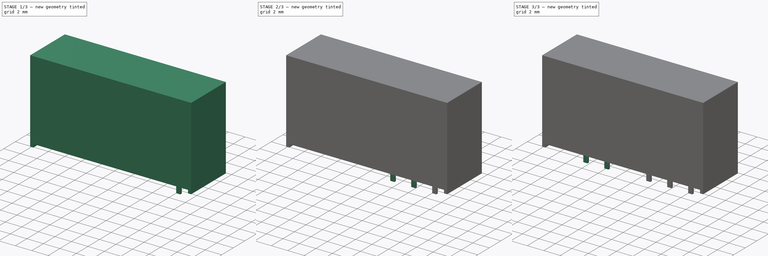
[diagram: build sequence overview — one tinted view per stage of 3, left to right]
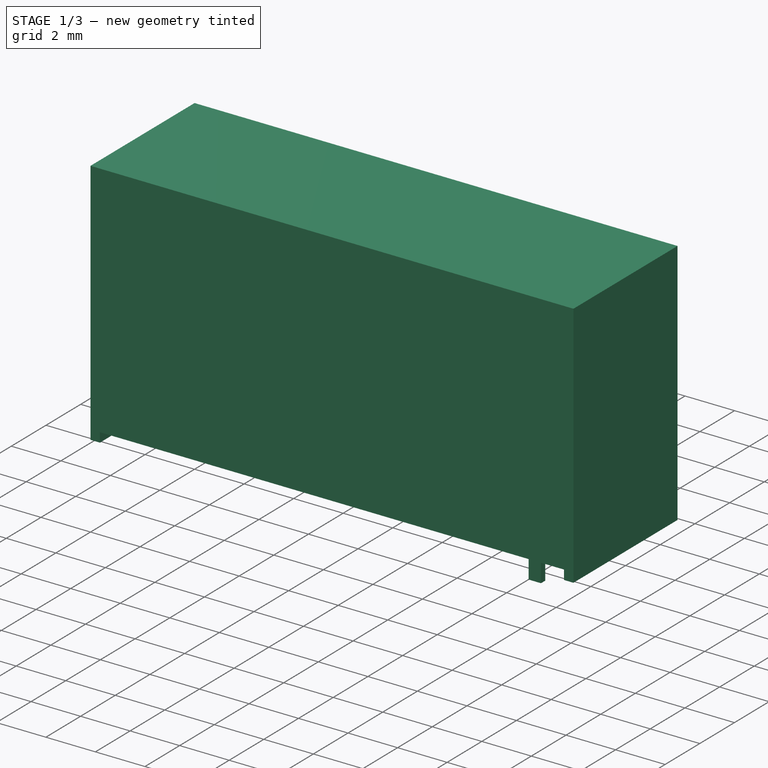
[diagram: stage 1 of 3 — iso view after this stage's code; geometry added in this stage tinted green]
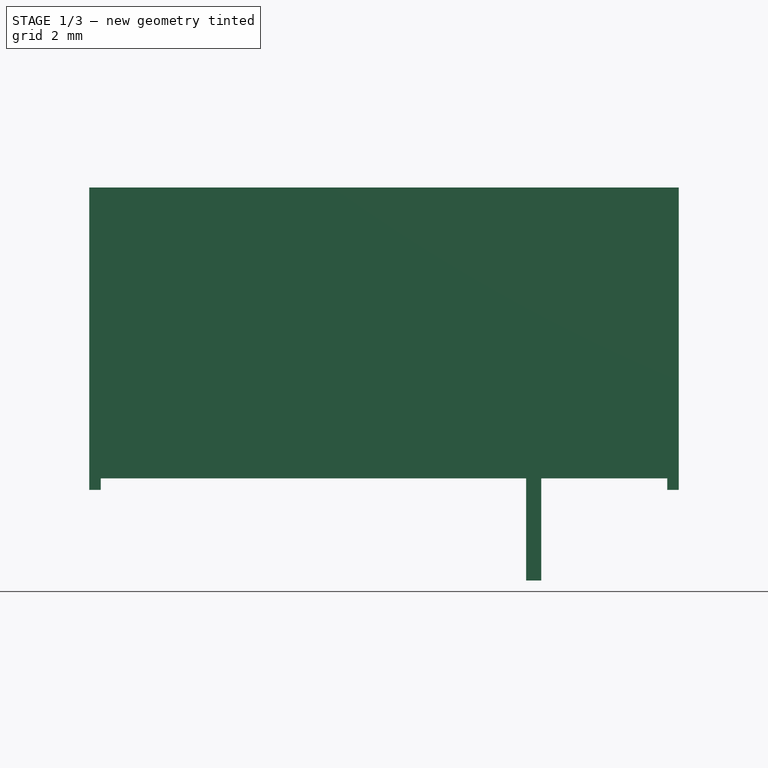
[diagram: stage 1 of 3 — front view after this stage's code; geometry added in this stage tinted green]
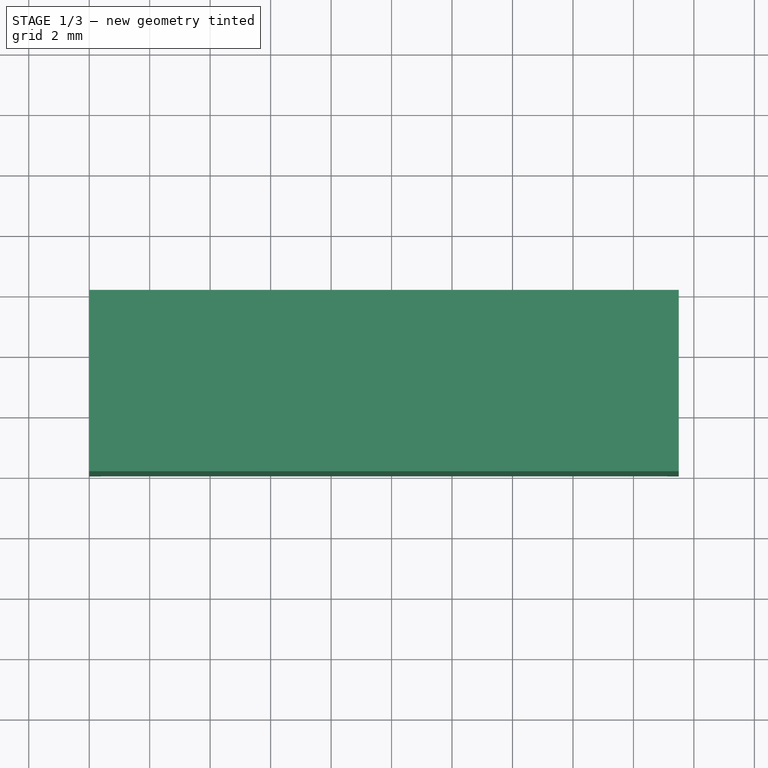
[diagram: stage 1 of 3 — top view after this stage's code; geometry added in this stage tinted green]
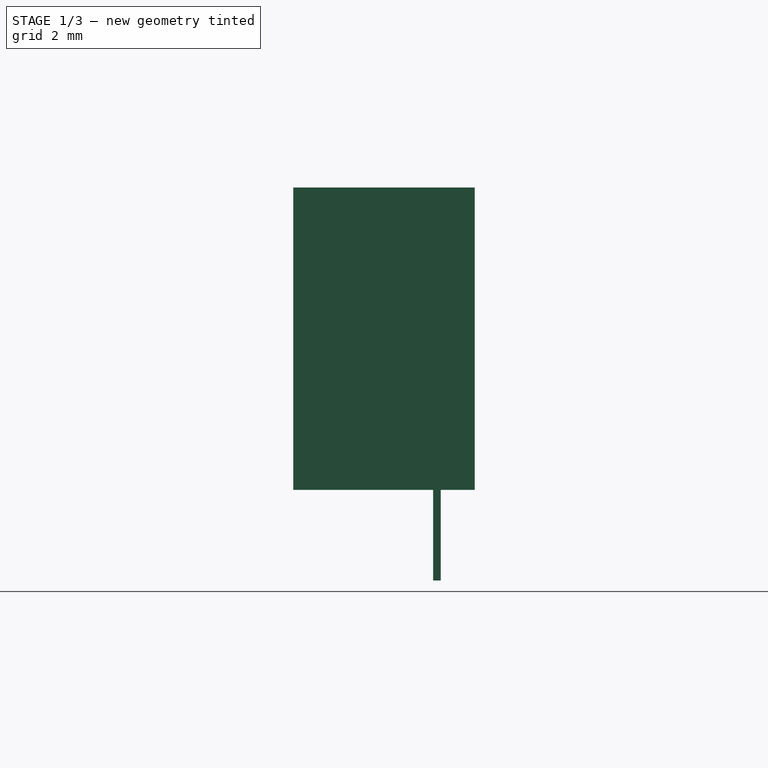
[diagram: stage 1 of 3 — right view after this stage's code; geometry added in this stage tinted green]
FCSTD DOCUMENT  (FreeCAD 0.16R6433 (Git))
Label: NMA2415SC
License: All rights reserved
LicenseURL: http://en.wikipedia.org/wiki/All_rights_reserved
objects: Sketcher::SketchObject×7, PartDesign::Pad×7, Part::Feature×5, Part::Part2DObjectPython×2, App::DocumentObjectGroup×1, Part::MultiFuse×1
note: 29 computed .brp shape members not serialized (recipe doc carries the construction recipe); baked Part::Feature solids carry a one-line shape summary decoded from their .brp

FEATURE [Sketcher::SketchObject] Sketch
  Placement = pos=(0,0,0) rot=(-1,0,0;4.71239rad)
  sketch-geometry (8):
    g0: LineSegment StartX=0 StartY=0 StartZ=0 EndX=0 EndY=10 EndZ=0
    g1: LineSegment StartX=0 StartY=10 StartZ=0 EndX=19.5 EndY=10 EndZ=0
    g2: LineSegment StartX=19.5 StartY=10 StartZ=0 EndX=19.5 EndY=0 EndZ=0
    g3: LineSegment StartX=19.5 StartY=0 StartZ=0 EndX=19.12 EndY=0 EndZ=0
    g4: LineSegment StartX=19.12 StartY=0 StartZ=0 EndX=19.12 EndY=0.38 EndZ=0
    g5: LineSegment StartX=19.12 StartY=0.38 StartZ=0 EndX=0.38 EndY=0.38 EndZ=0
    g6: LineSegment StartX=0.38 StartY=0.38 StartZ=0 EndX=0.38 EndY=0 EndZ=0
    g7: LineSegment StartX=0.38 StartY=0 StartZ=0 EndX=0 EndY=0 EndZ=0
  constraints (24):
    c: Coincident(g0,g1)
    c: Coincident(g1,g2)
    c: Coincident(g2,g3)
    c: Coincident(g3,g4)
    c: Coincident(g4,g5)
    c: Coincident(g5,g6)
    c: Coincident(g6,g7)
    c: Coincident(g0,g7)
    c: Coincident(g0,g-1)
    c: Vertical(g0)
    c: Vertical(g6)
    c: Vertical(g4)
    c: Vertical(g2)
    c: Horizontal(g1)
    c: Horizontal(g7)
    c: Horizontal(g5)
    c: Horizontal(g3)
    c: PointOnObject(g3,g-1)
    c: DistanceX(g1) = 19.5
    c: DistanceY(g0) = 10
    c: Equal(g3,g4)
    c: Equal(g4,g6)
    c: Equal(g6,g7)
    c: DistanceX(g7) = -0.38
FEATURE [PartDesign::Pad] Pad
  Length = 6
  Length2 = 100
  Placement = pos=(0,0,0) rot=(-1,0,0;4.71239rad)
  Sketch = -> Sketch
  Type = 0
FEATURE [Sketcher::SketchObject] Sketch005
  Placement = pos=(14.7,-1.25,0) rot=(1,0,0;1.5708rad)
  sketch-geometry (4):
    g0: LineSegment StartX=-0.25 StartY=2 StartZ=0 EndX=0.25 EndY=2 EndZ=0
    g1: LineSegment StartX=0.25 StartY=2 StartZ=0 EndX=0.25 EndY=-3 EndZ=0
    g2: LineSegment StartX=0.25 StartY=-3 StartZ=0 EndX=-0.25 EndY=-3 EndZ=0
    g3: LineSegment StartX=-0.25 StartY=-3 StartZ=0 EndX=-0.25 EndY=2 EndZ=0
  constraints (12):
    c: Coincident(g0,g1)
    c: Coincident(g1,g2)
    c: Coincident(g2,g3)
    c: Coincident(g3,g0)
    c: Horizontal(g0)
    c: Horizontal(g2)
    c: Vertical(g1)
    c: Vertical(g3)
    c: DistanceX(g2) = -0.5
    c: Symmetric(g2,g1,g-2)
    c: DistanceY(g-1,g2) = -3
    c: DistanceY(g3) = 5
FEATURE [PartDesign::Pad] Pad005
  Length = 0.25
  Length2 = 100
  Midplane = true
  Placement = pos=(14.7,-1.25,0) rot=(1,0,0;1.5708rad)
  Sketch = -> Sketch005
  Type = 0
FEATURE [Part::Part2DObjectPython] ShapeString  # Draft 2D object (typed FeaturePython)
  FontFile = <userpath>/Documentos/KiCad/modelos/arial.ttf
  Placement = pos=(3.89292,-6.01,6) rot=(1,0,0;1.5708rad)
  Size = 2.5
  String = muRata
  Support = -> Pad
  Tracking = 0
FEATURE [Sketcher::SketchObject] Sketch006
  Placement = pos=(0,0,0) rot=(1,0,0;1.5708rad)
  sketch-geometry (8):
    g0: LineSegment StartX=0 StartY=0 StartZ=0 EndX=0 EndY=10 EndZ=0
    g1: LineSegment StartX=0 StartY=10 StartZ=0 EndX=19.5 EndY=10 EndZ=0
    g2: LineSegment StartX=19.5 StartY=10 StartZ=0 EndX=19.5 EndY=0 EndZ=0
    g3: LineSegment StartX=19.5 StartY=0 StartZ=0 EndX=19.12 EndY=0 EndZ=0
    g4: LineSegment StartX=19.12 StartY=0 StartZ=0 EndX=19.12 EndY=0.38 EndZ=0
    g5: LineSegment StartX=19.12 StartY=0.38 StartZ=0 EndX=0.38 EndY=0.38 EndZ=0
    g6: LineSegment StartX=0.38 StartY=0.38 StartZ=0 EndX=0.38 EndY=0 EndZ=0
    g7: LineSegment StartX=0.38 StartY=0 StartZ=0 EndX=0 EndY=0 EndZ=0
  constraints (24):
    c: Coincident(g0,g1)
    c: Coincident(g1,g2)
    c: Coincident(g2,g3)
    c: Coincident(g3,g4)
    c: Coincident(g4,g5)
    c: Coincident(g5,g6)
    c: Coincident(g6,g7)
    c: Coincident(g0,g7)
    c: Coincident(g0,g-1)
    c: Vertical(g0)
    c: Vertical(g6)
    c: Vertical(g4)
    c: Vertical(g2)
    c: Horizontal(g1)
    c: Horizontal(g7)
    c: Horizontal(g5)
    c: Horizontal(g3)
    c: PointOnObject(g3,g-1)
    c: DistanceX(g1) = 19.5
    c: DistanceY(g0) = 10
    c: Equal(g3,g4)
    c: Equal(g4,g6)
    c: Equal(g6,g7)
    c: DistanceX(g7) = -0.38
FEATURE [PartDesign::Pad] Pad006
  Length = 6
  Length2 = 100
  Placement = pos=(0,0,0) rot=(1,0,0;1.5708rad)
  Sketch = -> Sketch006
  Type = 0
FEATURE [Part::Part2DObjectPython] ShapeString001  # Draft 2D object (typed FeaturePython)
  FontFile = <userpath>/Documentos/KiCad/modelos/arial.ttf
  Placement = pos=(1.89292,-6.01,2.5) rot=(1,0,0;1.5708rad)
  Size = 2
  String = NMA2415SC
  Support = -> Pad006
  Tracking = 0
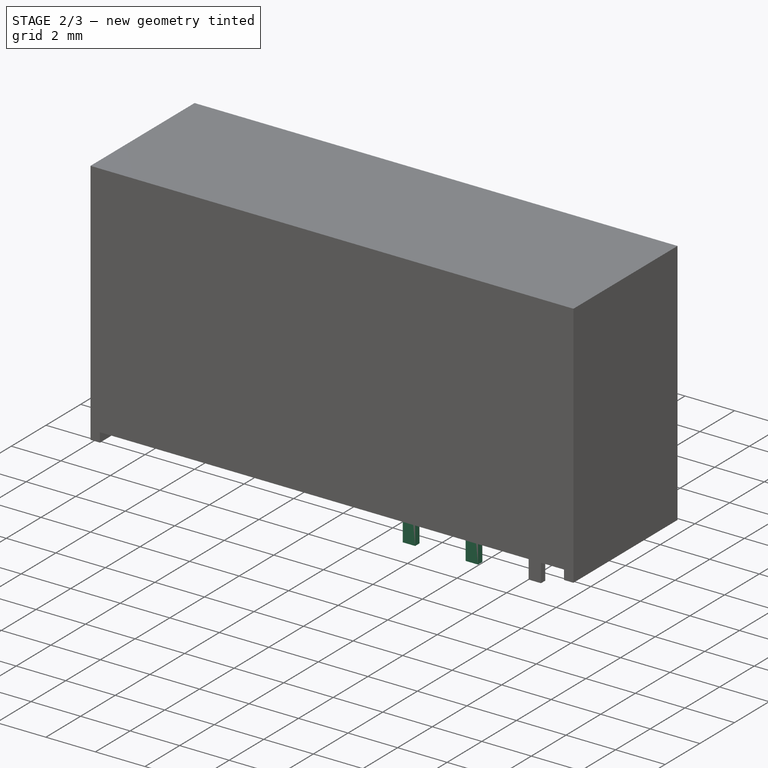
[diagram: stage 2 of 3 — iso view after this stage's code; geometry added in this stage tinted green]
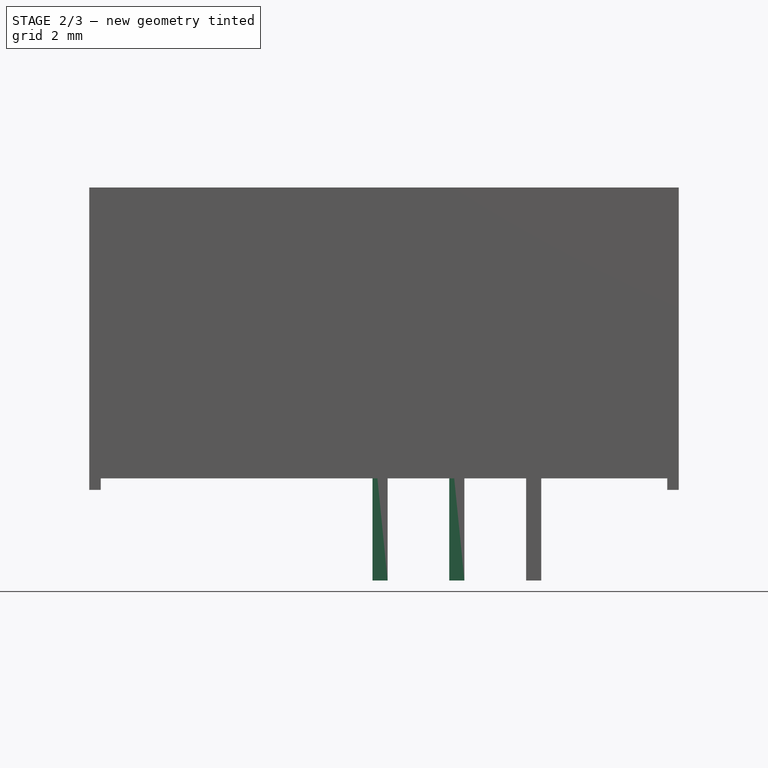
[diagram: stage 2 of 3 — front view after this stage's code; geometry added in this stage tinted green]
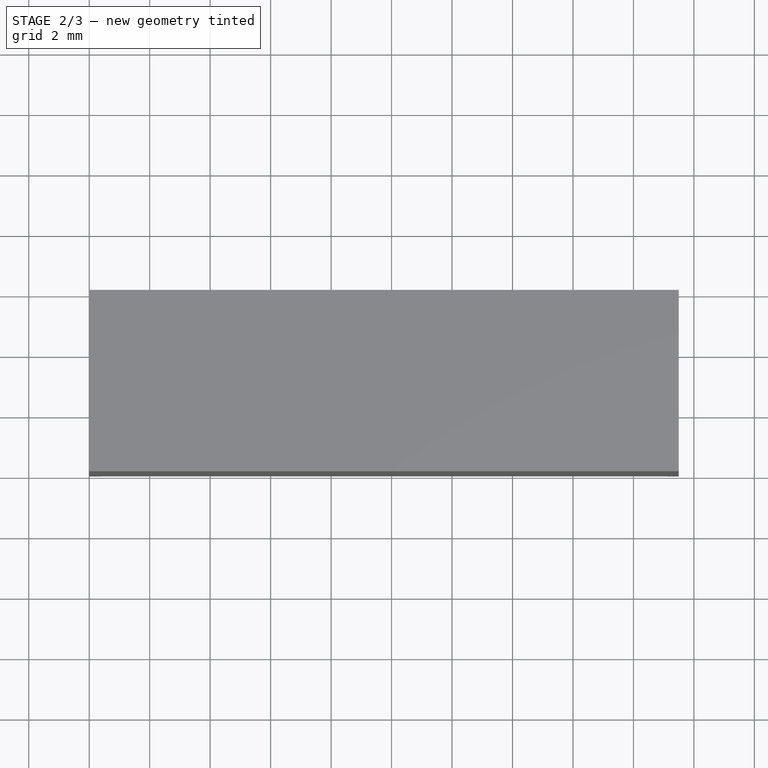
[diagram: stage 2 of 3 — top view after this stage's code; geometry added in this stage tinted green]
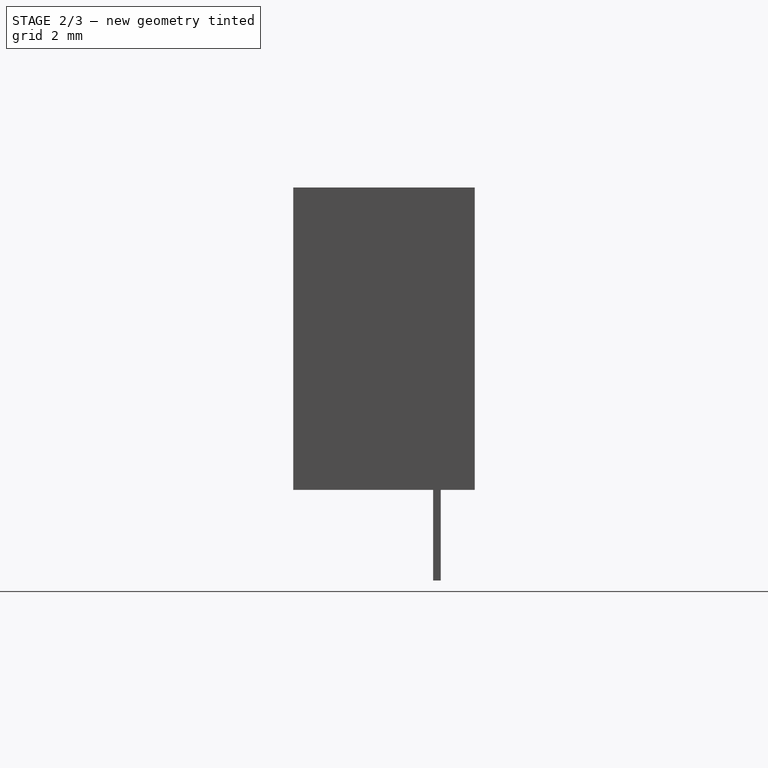
[diagram: stage 2 of 3 — right view after this stage's code; geometry added in this stage tinted green]
FEATURE [Sketcher::SketchObject] Sketch003
  Placement = pos=(9.62,-1.25,0) rot=(1,0,0;1.5708rad)
  sketch-geometry (4):
    g0: LineSegment StartX=-0.25 StartY=2 StartZ=0 EndX=0.25 EndY=2 EndZ=0
    g1: LineSegment StartX=0.25 StartY=2 StartZ=0 EndX=0.25 EndY=-3 EndZ=0
    g2: LineSegment StartX=0.25 StartY=-3 StartZ=0 EndX=-0.25 EndY=-3 EndZ=0
    g3: LineSegment StartX=-0.25 StartY=-3 StartZ=0 EndX=-0.25 EndY=2 EndZ=0
  constraints (12):
    c: Coincident(g0,g1)
    c: Coincident(g1,g2)
    c: Coincident(g2,g3)
    c: Coincident(g3,g0)
    c: Horizontal(g0)
    c: Horizontal(g2)
    c: Vertical(g1)
    c: Vertical(g3)
    c: DistanceX(g2) = -0.5
    c: Symmetric(g2,g1,g-2)
    c: DistanceY(g-1,g2) = -3
    c: DistanceY(g3) = 5
FEATURE [PartDesign::Pad] Pad003
  Length = 0.25
  Length2 = 100
  Midplane = true
  Placement = pos=(9.62,-1.25,0) rot=(1,0,0;1.5708rad)
  Sketch = -> Sketch003
  Type = 0
FEATURE [Sketcher::SketchObject] Sketch004
  Placement = pos=(12.16,-1.25,0) rot=(1,0,0;1.5708rad)
  sketch-geometry (4):
    g0: LineSegment StartX=-0.25 StartY=2 StartZ=0 EndX=0.25 EndY=2 EndZ=0
    g1: LineSegment StartX=0.25 StartY=2 StartZ=0 EndX=0.25 EndY=-3 EndZ=0
    g2: LineSegment StartX=0.25 StartY=-3 StartZ=0 EndX=-0.25 EndY=-3 EndZ=0
    g3: LineSegment StartX=-0.25 StartY=-3 StartZ=0 EndX=-0.25 EndY=2 EndZ=0
  constraints (12):
    c: Coincident(g0,g1)
    c: Coincident(g1,g2)
    c: Coincident(g2,g3)
    c: Coincident(g3,g0)
    c: Horizontal(g0)
    c: Horizontal(g2)
    c: Vertical(g1)
    c: Vertical(g3)
    c: DistanceX(g2) = -0.5
    c: Symmetric(g2,g1,g-2)
    c: DistanceY(g-1,g2) = -3
    c: DistanceY(g3) = 5
FEATURE [PartDesign::Pad] Pad004
  Length = 0.25
  Length2 = 100
  Midplane = true
  Placement = pos=(12.16,-1.25,0) rot=(1,0,0;1.5708rad)
  Sketch = -> Sketch004
  Type = 0
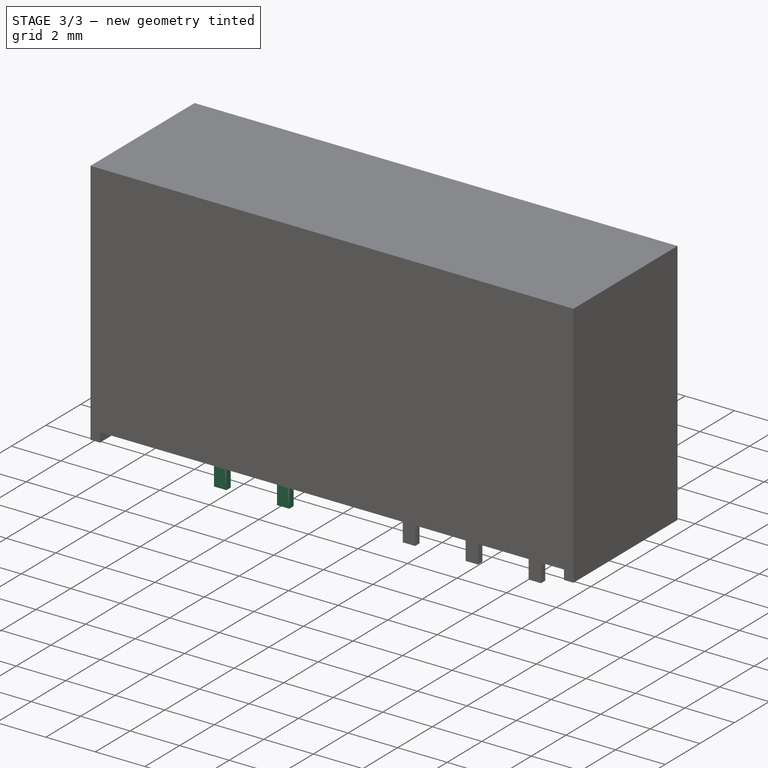
[diagram: stage 3 of 3 — iso view after this stage's code; geometry added in this stage tinted green]
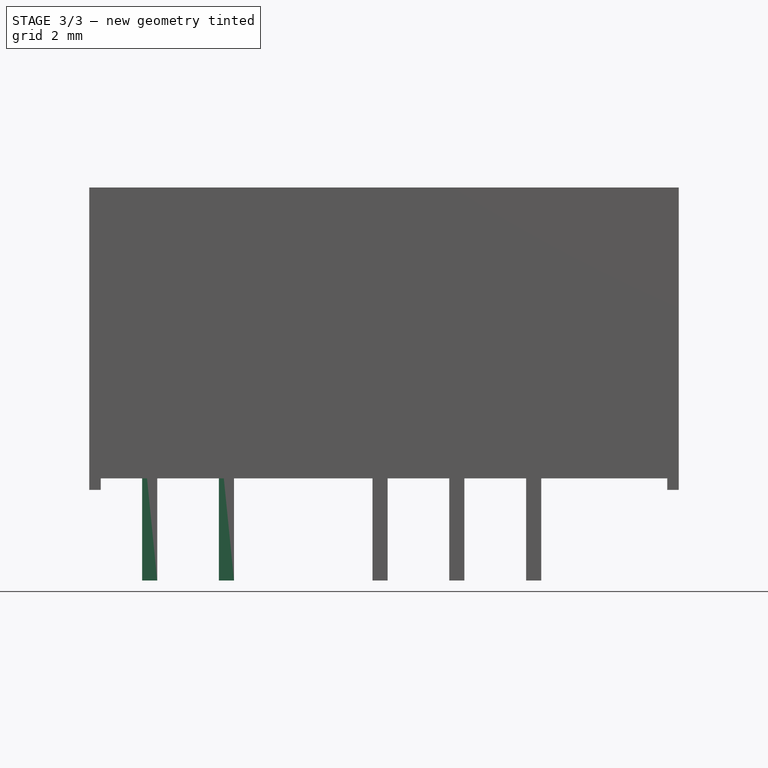
[diagram: stage 3 of 3 — front view after this stage's code; geometry added in this stage tinted green]
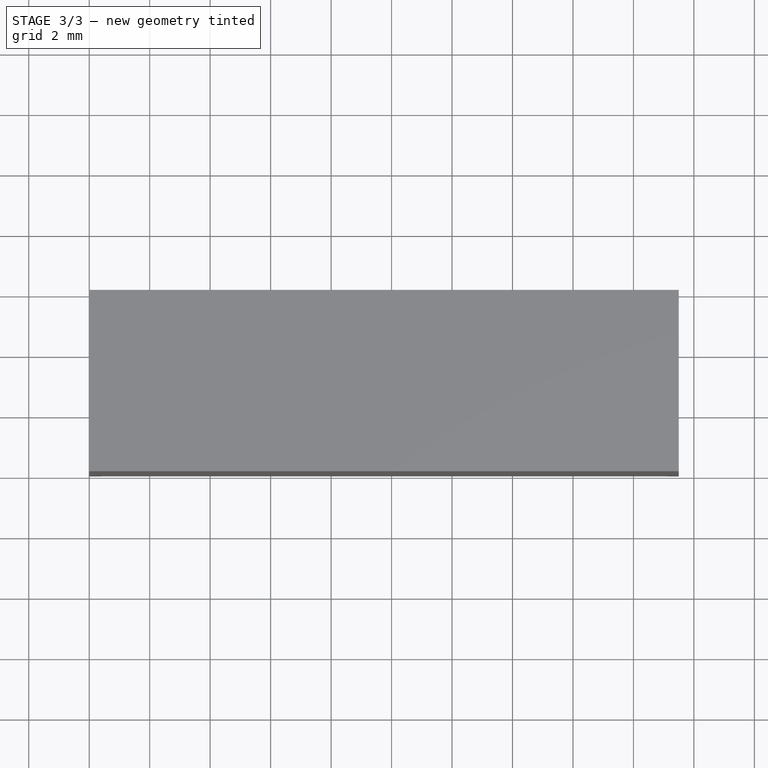
[diagram: stage 3 of 3 — top view after this stage's code; geometry added in this stage tinted green]
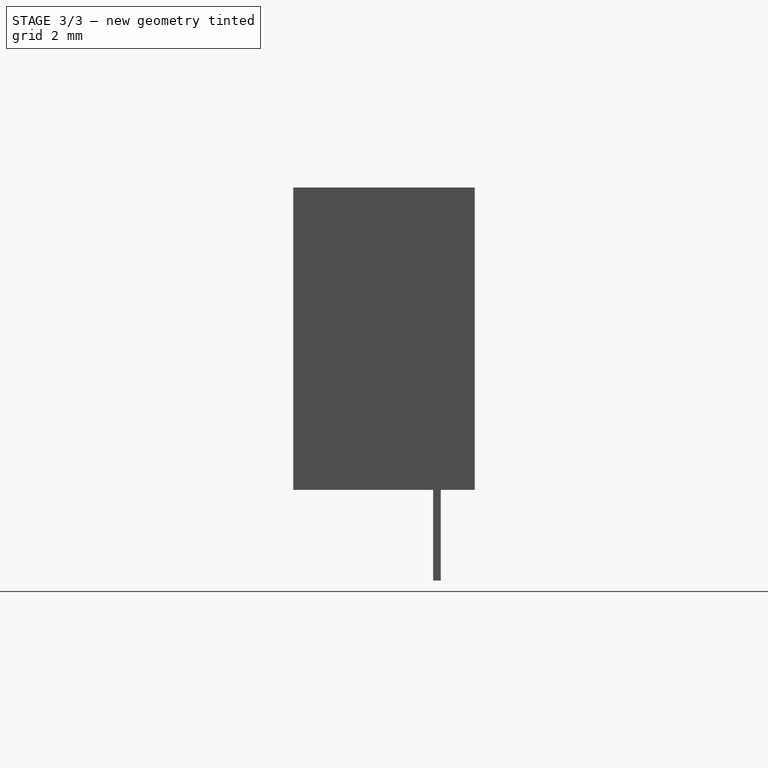
[diagram: stage 3 of 3 — right view after this stage's code; geometry added in this stage tinted green]
FEATURE [Sketcher::SketchObject] Sketch001
  Placement = pos=(2,-1.25,0) rot=(-1,0,0;4.71239rad)
  sketch-geometry (4):
    g0: LineSegment StartX=-0.25 StartY=2 StartZ=0 EndX=0.25 EndY=2 EndZ=0
    g1: LineSegment StartX=0.25 StartY=2 StartZ=0 EndX=0.25 EndY=-3 EndZ=0
    g2: LineSegment StartX=0.25 StartY=-3 StartZ=0 EndX=-0.25 EndY=-3 EndZ=0
    g3: LineSegment StartX=-0.25 StartY=-3 StartZ=0 EndX=-0.25 EndY=2 EndZ=0
  constraints (12):
    c: Coincident(g0,g1)
    c: Coincident(g1,g2)
    c: Coincident(g2,g3)
    c: Coincident(g3,g0)
    c: Horizontal(g0)
    c: Horizontal(g2)
    c: Vertical(g1)
    c: Vertical(g3)
    c: DistanceX(g2) = -0.5
    c: Symmetric(g2,g1,g-2)
    c: DistanceY(g-1,g2) = -3
    c: DistanceY(g3) = 5
FEATURE [PartDesign::Pad] Pad001
  Length = 0.25
  Length2 = 100
  Midplane = true
  Placement = pos=(2,-1.25,0) rot=(-1,0,0;4.71239rad)
  Sketch = -> Sketch001
  Type = 0
FEATURE [Sketcher::SketchObject] Sketch002
  Placement = pos=(4.54,-1.25,0) rot=(1,0,0;1.5708rad)
  sketch-geometry (4):
    g0: LineSegment StartX=-0.25 StartY=2 StartZ=0 EndX=0.25 EndY=2 EndZ=0
    g1: LineSegment StartX=0.25 StartY=2 StartZ=0 EndX=0.25 EndY=-3 EndZ=0
    g2: LineSegment StartX=0.25 StartY=-3 StartZ=0 EndX=-0.25 EndY=-3 EndZ=0
    g3: LineSegment StartX=-0.25 StartY=-3 StartZ=0 EndX=-0.25 EndY=2 EndZ=0
  constraints (12):
    c: Coincident(g0,g1)
    c: Coincident(g1,g2)
    c: Coincident(g2,g3)
    c: Coincident(g3,g0)
    c: Horizontal(g0)
    c: Horizontal(g2)
    c: Vertical(g1)
    c: Vertical(g3)
    c: DistanceX(g2) = -0.5
    c: Symmetric(g2,g1,g-2)
    c: DistanceY(g-1,g2) = -3
    c: DistanceY(g3) = 5
FEATURE [PartDesign::Pad] Pad002
  Length = 0.25
  Length2 = 100
  Midplane = true
  Placement = pos=(4.54,-1.25,0) rot=(1,0,0;1.5708rad)
  Sketch = -> Sketch002
  Type = 0
FEATURE [Part::Feature] Shape  label="FrontSilk"
  shape: bbox 19.65 x 6.15 x 2e-07 mm, 4 faces, 0 solids (baked)
FEATURE [Part::Feature] Shape001  label="TopPads"
  shape: bbox 13.7 x 1.5 x 0.01 mm, 62 faces, 5 solids (baked)
FEATURE [Part::Feature] Shape002  label="BotPads"
  shape: bbox 13.7 x 1.5 x 0.01 mm, 62 faces, 5 solids (baked)
FEATURE [Part::Feature] Shape004  label="PTHs"
  shape: bbox 13.31 x 0.61 x 1.58 mm, 52 faces (baked)
FEATURE [Part::Feature] Shape005002  label="Pcb"
  shape: bbox 31.44 x 9.84 x 1.58 mm, 26 faces (baked)
FEATURE [App::DocumentObjectGroup] NMA_SIP_STYLE_fp
  Group = -> [Shape,Shape001,Shape002,Shape004,Shape005002]
FEATURE [Part::MultiFuse] Fusion
  Shapes = -> [Pad001,Pad003,Pad002,Pad005,Pad004]
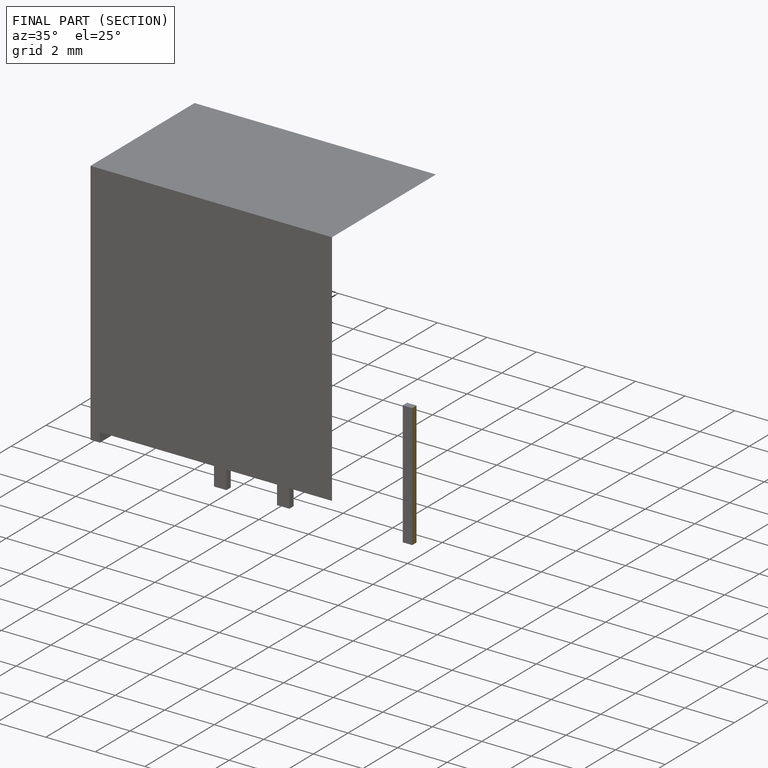
[diagram: finished part — half-section view (interior)]
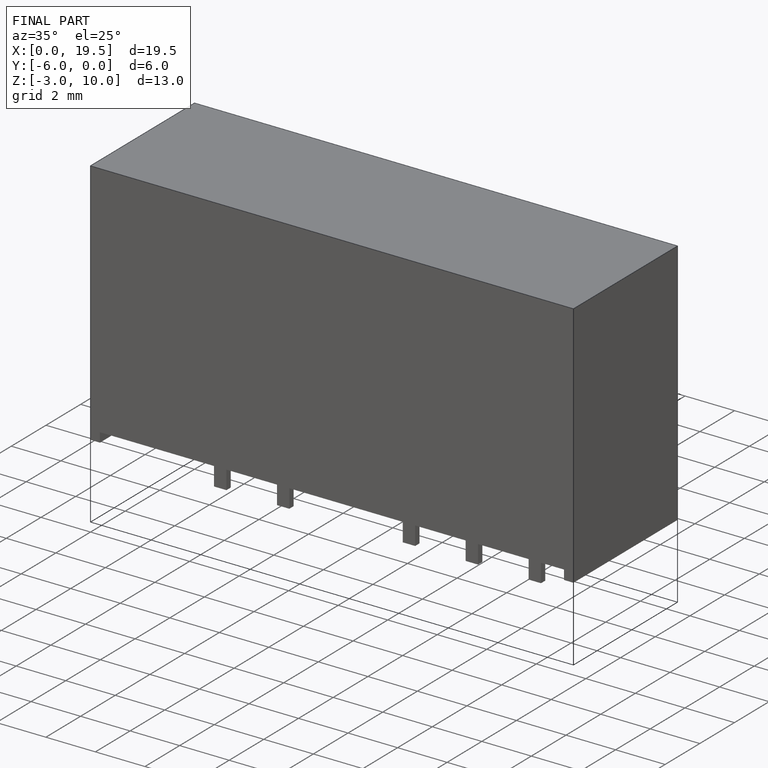
[diagram: finished part — iso view with bounding-box wireframe]
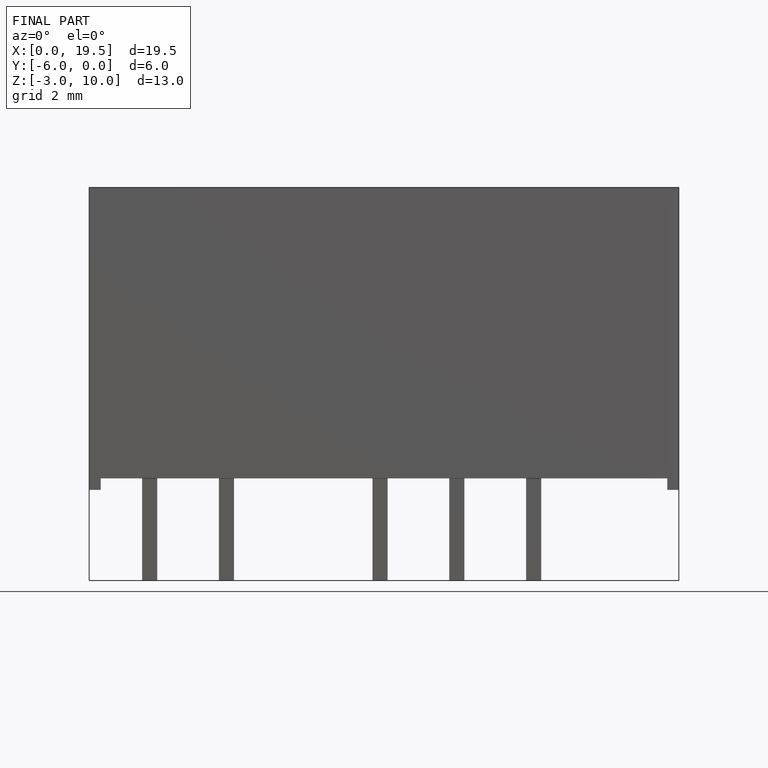
[diagram: finished part — front view with bounding-box wireframe]
